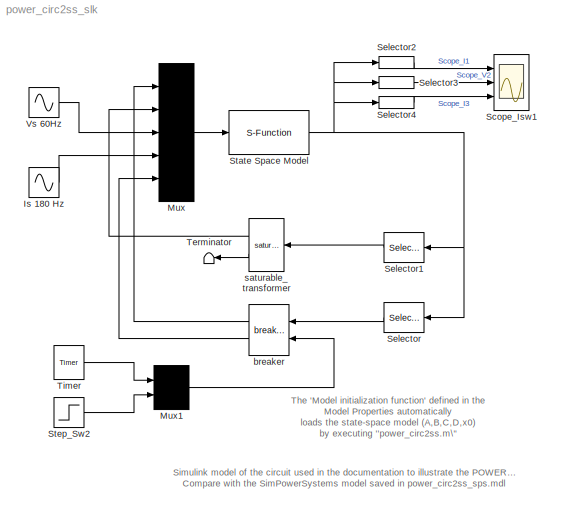
MODEL power_circ2ss_slk
KIND model
CONFIG InitFcn = power_circ2ss\n
BLOCK [Sin] Is 180 Hz
  Amplitude = 2
  Frequency = 2*pi*180
  Phase = -30*pi/180
  Ports = [0, 1]
  SampleTime = 0
  SineType = Time based
BLOCK [Mux] Mux
  Inputs = [2 1 1 1 2]
  Ports = [5, 1]
BLOCK [Mux] Mux1
  Inputs = 2
  Ports = [2, 1]
BLOCK [Scope] Scope_Isw1
  DataFormat = Array
  NumInputPorts = 3
  Ports = [3]
  TickLabels = on
  TimeRange = 0.25
  YMax = 10~200~200
  YMin = -15~-400~-400
  ZoomMode = xonly
BLOCK [Selector] Selector
  Elements = [1 2]
  InputPortWidth = 8
  Ports = [1, 1]
BLOCK [Selector] Selector1
  Elements = 5
  InputPortWidth = 8
  Ports = [1, 1]
BLOCK [Selector] Selector2
  Elements = 6
  InputPortWidth = 8
  Ports = [1, 1]
BLOCK [Selector] Selector3
  Elements = 7
  InputPortWidth = 8
  Ports = [1, 1]
BLOCK [Selector] Selector4
  Elements = 8
  InputPortWidth = 8
  Ports = [1, 1]
BLOCK [S-Function] State Space Model
  FunctionName = sfun_psbcontc
  MaskIconFrame = on
  MaskIconOpaque = on
  MaskIconRotate = none
  MaskIconUnits = autoscale
  Parameters = A,B,C,D,x0, [0.01; 0.1], [0 0]
  Ports = [1, 1]
BLOCK [Step] Step_Sw2
  SampleTime = 0
  Time = 0.05
BLOCK [Terminator] Terminator
BLOCK [Reference] Timer  REF=powerlib_extras/Control \nBlocks/Timer
  Ports = [0, 1]
  SourceBlock = powerlib_extras/Control \nBlocks/Timer
  SourceType = Timer
  e = [1 0 1 ]
  t = [0 100e-3 130e-3]
BLOCK [Sin] Vs 60Hz
  Amplitude = 100
  Frequency = 2*pi*60
  Ports = [0, 1]
  SampleTime = 0
  SineType = Time based
BLOCK [Reference] breaker  REF=powerlib_models/Continuous/breaker
  Nsw = 2
  Ports = [2, 2]
  Rsw = [0.01 0.1]
  SourceBlock = powerlib_models/Continuous/breaker
  SourceType = Unknown
  istate = [1 0]
BLOCK [Reference] saturable_transformer  REF=powerlib_models/Continuous/saturable_transformer
  InitialFlux = -0.2707
  Ports = [1, 2]
  SaturationCurrent = [-141.4 -0.1414 0.1414 141.4]
  SaturationFlux = [-0.4877 -0.4502 0.4502 0.4877]
  SourceBlock = powerlib_models/Continuous/saturable_transformer
  SourceType = Unknown
ANNOTATION (root): Simulink model of the circuit used in the documentation to illustrate the POWER_STATESPACE command.\nCompare with the SimPowerSystems model saved in power_circ2ss_sps.mdl
ANNOTATION (root): The 'Model initialization function' defined in the\nModel Properties automatically \nloads the state-space model (A,B,C,D,x0)\nby executing ''power_circ2ss.m\"
LINE Is 180 Hz:1 -> Mux:4
LINE Mux1:1 -> breaker:2
LINE Mux:1 -> State Space Model:1
LINE Selector1:1 -> saturable_transformer:1
LINE Selector2:1 -> Scope_Isw1:1
LINE Selector3:1 -> Scope_Isw1:2
LINE Selector4:1 -> Scope_Isw1:3
LINE Selector:1 -> breaker:1
NET State Space Model:1 -> Selector1:1, Selector2:1, Selector3:1, Selector4:1, Selector:1
LINE Step_Sw2:1 -> Mux1:2
LINE Timer:1 -> Mux1:1
LINE Vs 60Hz:1 -> Mux:3
LINE breaker:1 -> Mux:1
LINE breaker:2 -> Mux:5
LINE saturable_transformer:1 -> Mux:2
LINE saturable_transformer:2 -> Terminator:1
note: NET lines group one-source signal fan-out (src -> all destinations, sorted); 1:1 wires keep LINE
